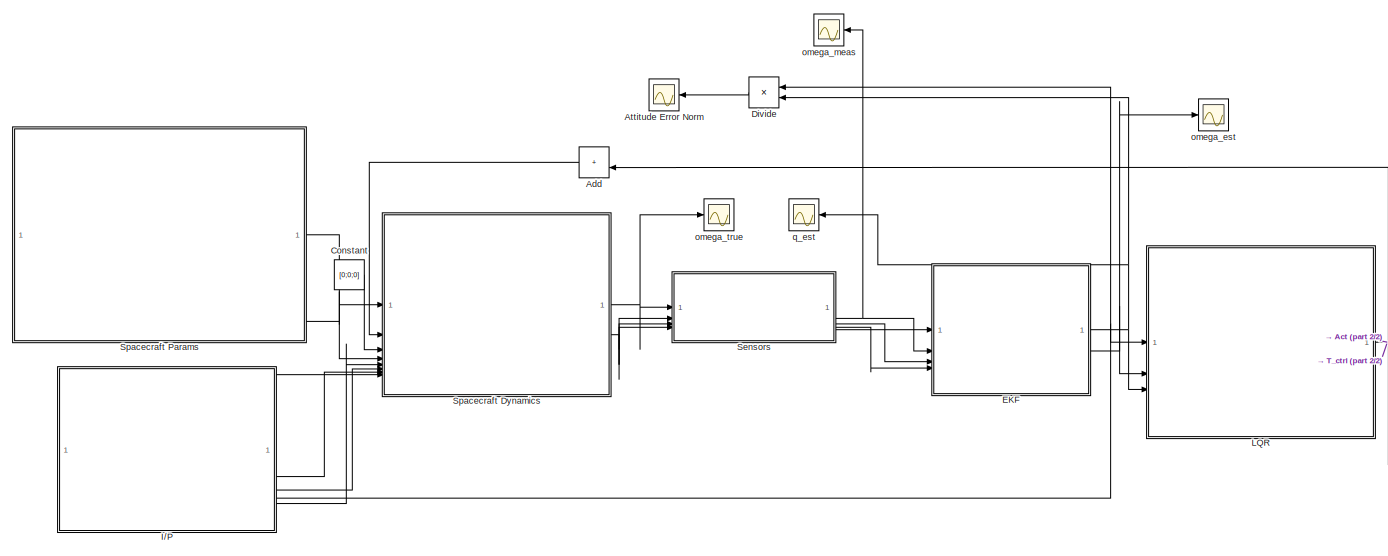
[diagram: root canvas - part 1/2, most of the canvas]
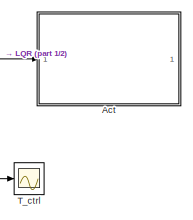
[diagram: root canvas - part 2/2, bottom right region]
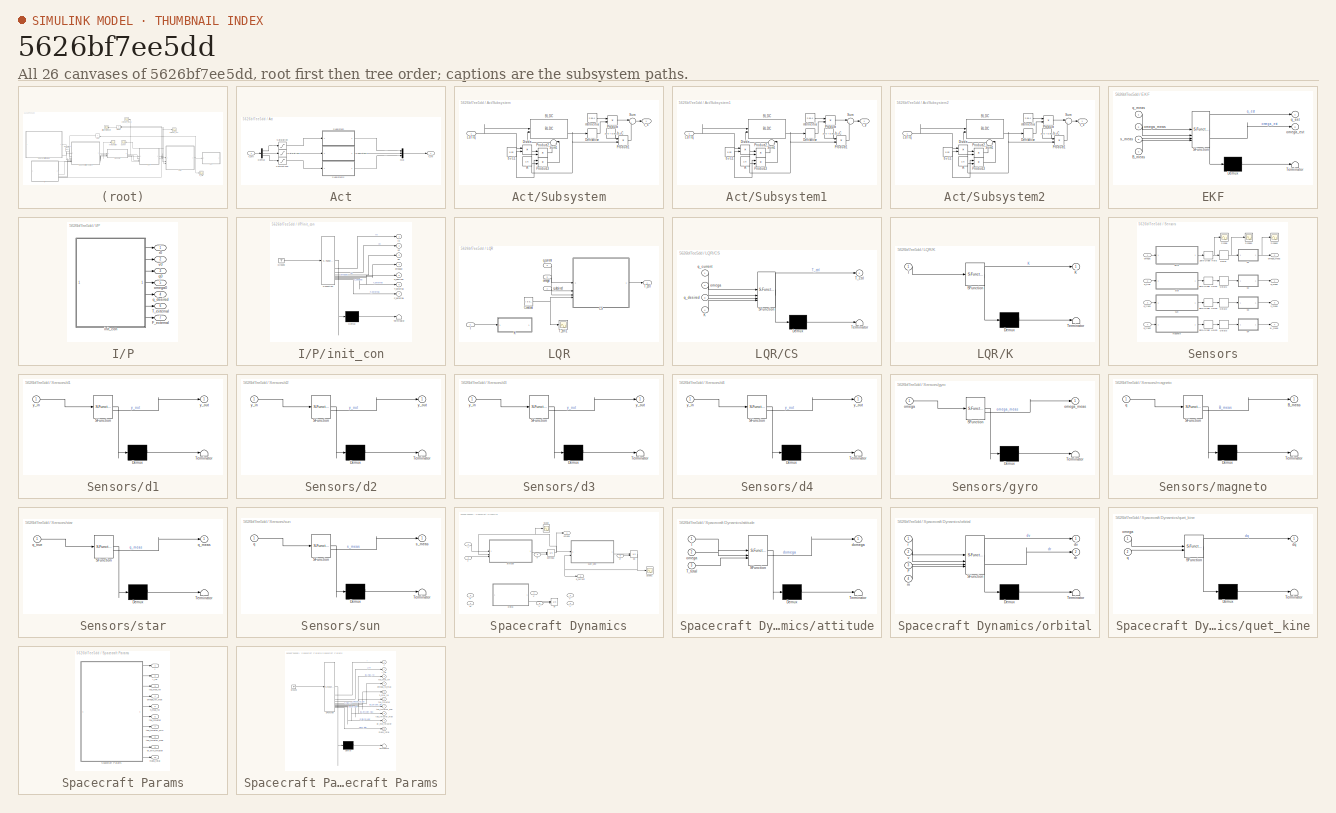
[diagram: thumbnail index - all 26 canvases of the model, root first then tree order]
MODEL slx_5626bf7ee5dd
KIND model
CONFIG AbsTol = 1e-5
CONFIG EnableMultiTasking = off
CONFIG FixedStep = auto
CONFIG MaxStep = 0.01
CONFIG MinStep = auto
CONFIG RelTol = 1e-4
CONFIG SampleTimeConstraint = Unconstrained
CONFIG SolverName = VariableStepAuto
CONFIG StartTime = 0.0
CONFIG StopTime = 100
BLOCK [SubSystem] Act
BLOCK [Demux] Act/Demux
  Outputs = 3
BLOCK [Mux] Act/Mux
  DisplayOption = bar
  Inputs = 3
BLOCK [Saturate] Act/Saturation
  LowerLimit = -0.2
  UpperLimit = 0.2
BLOCK [Saturate] Act/Saturation1
  LowerLimit = -0.2
  UpperLimit = 0.2
BLOCK [Saturate] Act/Saturation2
  LowerLimit = -0.2
  UpperLimit = 0.2
BLOCK [SubSystem] Act/Subsystem
BLOCK [Reference] Act/Subsystem/BLDC  REF=autolibbldc/BLDC
  LibrarySourceBlock = mcblib/Electrical Systems/Motors/BLDC
  SourceBlock = autolibbldc/BLDC
  SourceType = BLDC
BLOCK [Derivative] Act/Subsystem/Derivative
BLOCK [Product] Act/Subsystem/Divide
  Inputs = */
BLOCK [Inport] Act/Subsystem/LdTrq
BLOCK [Product] Act/Subsystem/Product
BLOCK [Product] Act/Subsystem/Product1
BLOCK [Product] Act/Subsystem/Product2
BLOCK [Product] Act/Subsystem/Product3
BLOCK [Constant] Act/Subsystem/R
  Value = 2.5
BLOCK [Sum] Act/Subsystem/Sum
  Inputs = |++
BLOCK [Sum] Act/Subsystem/Sum1
  Inputs = |++
BLOCK [Constant] Act/Subsystem/b+C
  Value = 1e-5 + 0.001
BLOCK [Constant] Act/Subsystem/b+C1
  Value = 0.05
BLOCK [Constant] Act/Subsystem/mtrInertia
  Value = 2.5e-4
BLOCK [Outport] Act/Subsystem/t_x
BLOCK [SubSystem] Act/Subsystem1
BLOCK [Reference] Act/Subsystem1/BLDC  REF=autolibbldc/BLDC
  LibrarySourceBlock = mcblib/Electrical Systems/Motors/BLDC
  SourceBlock = autolibbldc/BLDC
  SourceType = BLDC
BLOCK [Derivative] Act/Subsystem1/Derivative
BLOCK [Product] Act/Subsystem1/Divide
  Inputs = */
BLOCK [Inport] Act/Subsystem1/LdTrq
BLOCK [Product] Act/Subsystem1/Product
BLOCK [Product] Act/Subsystem1/Product1
BLOCK [Product] Act/Subsystem1/Product2
BLOCK [Product] Act/Subsystem1/Product3
BLOCK [Constant] Act/Subsystem1/R
  Value = 2.5
BLOCK [Sum] Act/Subsystem1/Sum
  Inputs = |++
BLOCK [Sum] Act/Subsystem1/Sum1
  Inputs = |++
BLOCK [Constant] Act/Subsystem1/b+C
  Value = 1e-5 + 0.001
BLOCK [Constant] Act/Subsystem1/b+C1
  Value = 0.05
BLOCK [Constant] Act/Subsystem1/mtrInertia
  Value = 2.5e-4
BLOCK [Outport] Act/Subsystem1/t_y
BLOCK [SubSystem] Act/Subsystem2
BLOCK [Reference] Act/Subsystem2/BLDC  REF=autolibbldc/BLDC
  LibrarySourceBlock = mcblib/Electrical Systems/Motors/BLDC
  SourceBlock = autolibbldc/BLDC
  SourceType = BLDC
BLOCK [Derivative] Act/Subsystem2/Derivative
BLOCK [Product] Act/Subsystem2/Divide
  Inputs = */
BLOCK [Inport] Act/Subsystem2/LdTrq
BLOCK [Product] Act/Subsystem2/Product
BLOCK [Product] Act/Subsystem2/Product1
BLOCK [Product] Act/Subsystem2/Product2
BLOCK [Product] Act/Subsystem2/Product3
BLOCK [Constant] Act/Subsystem2/R
  Value = 2.5
BLOCK [Sum] Act/Subsystem2/Sum
  Inputs = |++
BLOCK [Sum] Act/Subsystem2/Sum1
  Inputs = |++
BLOCK [Constant] Act/Subsystem2/b+C
  Value = 1e-5 + 0.001
BLOCK [Constant] Act/Subsystem2/b+C1
  Value = 0.05
BLOCK [Constant] Act/Subsystem2/mtrInertia
  Value = 2.5e-4
BLOCK [Outport] Act/Subsystem2/t_z
BLOCK [Inport] Act/T_ctrl
BLOCK [Outport] Act/T_rw
BLOCK [Sum] Add
  IconShape = rectangular
BLOCK [Scope] Attitude Error Norm
  Floating = off
  NumInputPorts = 1
  ScopeSpecificationString = Simulink.scopes.TimeScopeBlockCfg('CurrentConfiguration', extmgr.ConfigurationSet(extmgr.Configuration('Core','General UI',true),extmgr.Configuration('Core','Source UI',true),extmgr.Configuration('Sources','WiredSimulink',true,'DataLoggingVariableName','ScopeData11'),extmgr.Configuration('Visuals','Time Domain',true,'SerializedDisplays',{struct('MinYLimReal','-103.05468','MaxYLimReal','30.20992','...<+1538ch>
BLOCK [Constant] Constant
  Value = [0;0;0]
BLOCK [Product] Divide
  Inputs = */
BLOCK [SubSystem] EKF
  ErrorFcn = Stateflow.Translate.translate
  PermitHierarchicalResolution = ExplicitOnly
  SFBlockType = MATLAB Function
  TreatAsAtomicUnit = on
BLOCK [Demux] EKF/ Demux 
  Outputs = 1
BLOCK [S-Function] EKF/ SFunction 
  EnableBusSupport = on
  FunctionName = sf_sfun
  PortCounts = [4 3]
  SFcnIsStateOwnerBlock = off
  SFunctionDeploymentMode = off
  Tag = Stateflow S-Function 13
BLOCK [Terminator] EKF/ Terminator 
BLOCK [Inport] EKF/B_meas
  Port = 4
BLOCK [Outport] EKF/omega_est
  Port = 2
BLOCK [Inport] EKF/omega_meas
  Port = 2
BLOCK [Outport] EKF/q_est
BLOCK [Inport] EKF/q_meas
BLOCK [Inport] EKF/s_meas
  Port = 3
BLOCK [SubSystem] I//P
BLOCK [Outport] I//P/F_external
  Port = 7
BLOCK [Outport] I//P/T_external
  Port = 6
BLOCK [SubSystem] I//P/init_con
  ErrorFcn = Stateflow.Translate.translate
  PermitHierarchicalResolution = ExplicitOnly
  SFBlockType = MATLAB Function
  TreatAsAtomicUnit = on
BLOCK [Demux] I//P/init_con/ Demux 
  Outputs = 1
BLOCK [Ground] I//P/init_con/ Ground 
BLOCK [S-Function] I//P/init_con/ SFunction 
  EnableBusSupport = on
  FunctionName = sf_sfun
  PortCounts = [1 8]
  SFcnIsStateOwnerBlock = off
  SFunctionDeploymentMode = off
  Tag = Stateflow S-Function 5
BLOCK [Terminator] I//P/init_con/ Terminator 
BLOCK [Outport] I//P/init_con/F_external
  Port = 7
BLOCK [Outport] I//P/init_con/T_external
  Port = 6
BLOCK [Outport] I//P/init_con/omega0
  Port = 4
BLOCK [Outport] I//P/init_con/q0
  Port = 3
BLOCK [Outport] I//P/init_con/q_desired
  Port = 5
BLOCK [Outport] I//P/init_con/r0
BLOCK [Outport] I//P/init_con/v0
  Port = 2
BLOCK [Outport] I//P/omega0
  Port = 5
BLOCK [Outport] I//P/q0
  Port = 3
BLOCK [Outport] I//P/q_desired
  Port = 4
BLOCK [Outport] I//P/r0
BLOCK [Outport] I//P/v0
  Port = 2
BLOCK [SubSystem] LQR
BLOCK [SubSystem] LQR/CS
  ErrorFcn = Stateflow.Translate.translate
  PermitHierarchicalResolution = ExplicitOnly
  SFBlockType = MATLAB Function
  TreatAsAtomicUnit = on
BLOCK [Demux] LQR/CS/ Demux 
  Outputs = 1
BLOCK [S-Function] LQR/CS/ SFunction 
  EnableBusSupport = on
  FunctionName = sf_sfun
  PortCounts = [4 2]
  SFcnIsStateOwnerBlock = off
  SFunctionDeploymentMode = off
  Tag = Stateflow S-Function 6
BLOCK [Terminator] LQR/CS/ Terminator 
BLOCK [Inport] LQR/CS/K
  Port = 4
BLOCK [Outport] LQR/CS/T_ctrl
BLOCK [Inport] LQR/CS/omega
  Port = 2
BLOCK [Inport] LQR/CS/q_current
BLOCK [Inport] LQR/CS/q_desired
  Port = 3
BLOCK [Constant] LQR/Constant
  Value = [\n    5   0   0   1.0  0    0;\n    0   5   0   0    1.0  0;\n    0   0   5   0    0    1.0\n]
BLOCK [Inport] LQR/I
  Port = 4
BLOCK [SubSystem] LQR/K
  ErrorFcn = Stateflow.Translate.translate
  PermitHierarchicalResolution = ExplicitOnly
  SFBlockType = MATLAB Function
  TreatAsAtomicUnit = on
BLOCK [Demux] LQR/K/ Demux 
  Outputs = 1
BLOCK [S-Function] LQR/K/ SFunction 
  EnableBusSupport = on
  FunctionName = sf_sfun
  PortCounts = [1 2]
  SFcnIsStateOwnerBlock = off
  SFunctionDeploymentMode = off
  Tag = Stateflow S-Function 17
BLOCK [Terminator] LQR/K/ Terminator 
BLOCK [Inport] LQR/K/I
BLOCK [Outport] LQR/K/K
BLOCK [Outport] LQR/T_ctrl
BLOCK [Scope] LQR/T_ctrl1
  Floating = off
  NumInputPorts = 1
  ScopeSpecificationString = Simulink.scopes.TimeScopeBlockCfg('CurrentConfiguration', extmgr.ConfigurationSet(extmgr.Configuration('Core','General UI',true),extmgr.Configuration('Core','Source UI',true),extmgr.Configuration('Sources','WiredSimulink',true,'DataLoggingVariableName','ScopeData16'),extmgr.Configuration('Visuals','Time Domain',true,'SerializedDisplays',{struct('MinYLimReal','-122.43954','MaxYLimReal','121.91641',...<+2378ch>
BLOCK [Inport] LQR/omega
  Port = 2
BLOCK [Inport] LQR/q_current
  Port = 3
BLOCK [Inport] LQR/q_desired
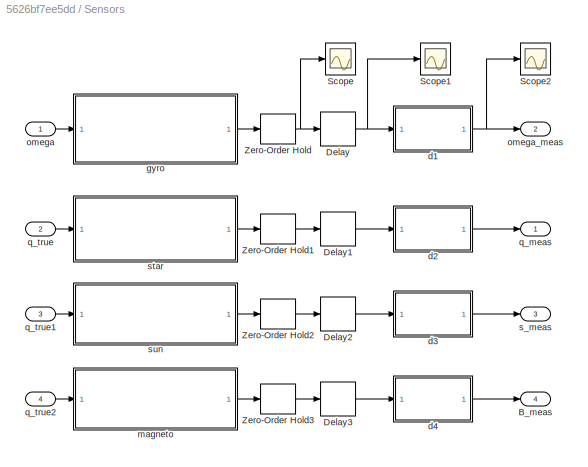
BLOCK [SubSystem] Sensors
BLOCK [Outport] Sensors/B_meas
  Port = 4
BLOCK [Delay] Sensors/Delay
  DelayLength = 1
  InitialCondition = 0
  InputPortMap = u0
  SampleTime = 0.05
BLOCK [Delay] Sensors/Delay1
  DelayLength = 1
  InitialCondition = 0
  InputPortMap = u0
  SampleTime = 0.05
BLOCK [Delay] Sensors/Delay2
  DelayLength = 1
  InitialCondition = 0
  InputPortMap = u0
  SampleTime = 0.05
BLOCK [Delay] Sensors/Delay3
  DelayLength = 1
  InitialCondition = 0
  InputPortMap = u0
  SampleTime = 0.05
BLOCK [Scope] Sensors/Scope
  Floating = off
  NumInputPorts = 1
  ScopeSpecificationString = Simulink.scopes.TimeScopeBlockCfg('CurrentConfiguration', extmgr.ConfigurationSet(extmgr.Configuration('Core','General UI',true),extmgr.Configuration('Core','Source UI',true),extmgr.Configuration('Sources','WiredSimulink',true,'DataLoggingVariableName','ScopeData8'),extmgr.Configuration('Visuals','Time Domain',true,'SerializedDisplays',{struct('MinYLimReal','-239897.09702','MaxYLimReal','26655.305...<+1494ch>
BLOCK [Scope] Sensors/Scope1
  Floating = off
  NumInputPorts = 1
  ScopeSpecificationString = Simulink.scopes.TimeScopeBlockCfg('CurrentConfiguration', extmgr.ConfigurationSet(extmgr.Configuration('Core','General UI',true),extmgr.Configuration('Core','Source UI',true),extmgr.Configuration('Sources','WiredSimulink',true,'DataLoggingVariableName','ScopeData9'),extmgr.Configuration('Visuals','Time Domain',true,'SerializedDisplays',{struct('MinYLimReal','-239897.09702','MaxYLimReal','26655.305...<+1499ch>
BLOCK [Scope] Sensors/Scope2
  Floating = off
  NumInputPorts = 1
  ScopeSpecificationString = Simulink.scopes.TimeScopeBlockCfg('CurrentConfiguration', extmgr.ConfigurationSet(extmgr.Configuration('Core','General UI',true),extmgr.Configuration('Core','Source UI',true),extmgr.Configuration('Sources','WiredSimulink',true,'DataLoggingVariableName','ScopeData10'),extmgr.Configuration('Visuals','Time Domain',true,'SerializedDisplays',{struct('MinYLimReal','-239897.09702','MaxYLimReal','26655.30...<+1456ch>
BLOCK [ZeroOrderHold] Sensors/Zero-Order Hold
  SampleTime = 0.1
BLOCK [ZeroOrderHold] Sensors/Zero-Order Hold1
  SampleTime = -1
BLOCK [ZeroOrderHold] Sensors/Zero-Order Hold2
  SampleTime = -1
BLOCK [ZeroOrderHold] Sensors/Zero-Order Hold3
  SampleTime = -1
BLOCK [SubSystem] Sensors/d1
  ErrorFcn = Stateflow.Translate.translate
  PermitHierarchicalResolution = ExplicitOnly
  SFBlockType = MATLAB Function
  TreatAsAtomicUnit = on
BLOCK [Demux] Sensors/d1/ Demux 
  Outputs = 1
BLOCK [S-Function] Sensors/d1/ SFunction 
  EnableBusSupport = on
  FunctionName = sf_sfun
  PortCounts = [1 2]
  SFcnIsStateOwnerBlock = off
  SFunctionDeploymentMode = off
  Tag = Stateflow S-Function 9
BLOCK [Terminator] Sensors/d1/ Terminator 
BLOCK [Inport] Sensors/d1/y_in
BLOCK [Outport] Sensors/d1/y_out
BLOCK [SubSystem] Sensors/d2
  ErrorFcn = Stateflow.Translate.translate
  PermitHierarchicalResolution = ExplicitOnly
  SFBlockType = MATLAB Function
  TreatAsAtomicUnit = on
BLOCK [Demux] Sensors/d2/ Demux 
  Outputs = 1
BLOCK [S-Function] Sensors/d2/ SFunction 
  EnableBusSupport = on
  FunctionName = sf_sfun
  PortCounts = [1 2]
  SFcnIsStateOwnerBlock = off
  SFunctionDeploymentMode = off
  Tag = Stateflow S-Function 10
BLOCK [Terminator] Sensors/d2/ Terminator 
BLOCK [Inport] Sensors/d2/y_in
BLOCK [Outport] Sensors/d2/y_out
BLOCK [SubSystem] Sensors/d3
  ErrorFcn = Stateflow.Translate.translate
  PermitHierarchicalResolution = ExplicitOnly
  SFBlockType = MATLAB Function
  TreatAsAtomicUnit = on
BLOCK [Demux] Sensors/d3/ Demux 
  Outputs = 1
BLOCK [S-Function] Sensors/d3/ SFunction 
  EnableBusSupport = on
  FunctionName = sf_sfun
  PortCounts = [1 2]
  SFcnIsStateOwnerBlock = off
  SFunctionDeploymentMode = off
  Tag = Stateflow S-Function 14
BLOCK [Terminator] Sensors/d3/ Terminator 
BLOCK [Inport] Sensors/d3/y_in
BLOCK [Outport] Sensors/d3/y_out
BLOCK [SubSystem] Sensors/d4
  ErrorFcn = Stateflow.Translate.translate
  PermitHierarchicalResolution = ExplicitOnly
  SFBlockType = MATLAB Function
  TreatAsAtomicUnit = on
BLOCK [Demux] Sensors/d4/ Demux 
  Outputs = 1
BLOCK [S-Function] Sensors/d4/ SFunction 
  EnableBusSupport = on
  FunctionName = sf_sfun
  PortCounts = [1 2]
  SFcnIsStateOwnerBlock = off
  SFunctionDeploymentMode = off
  Tag = Stateflow S-Function 15
BLOCK [Terminator] Sensors/d4/ Terminator 
BLOCK [Inport] Sensors/d4/y_in
BLOCK [Outport] Sensors/d4/y_out
BLOCK [SubSystem] Sensors/gyro
  ErrorFcn = Stateflow.Translate.translate
  PermitHierarchicalResolution = ExplicitOnly
  SFBlockType = MATLAB Function
  TreatAsAtomicUnit = on
BLOCK [Demux] Sensors/gyro/ Demux 
  Outputs = 1
BLOCK [S-Function] Sensors/gyro/ SFunction 
  EnableBusSupport = on
  FunctionName = sf_sfun
  PortCounts = [1 2]
  SFcnIsStateOwnerBlock = off
  SFunctionDeploymentMode = off
  Tag = Stateflow S-Function 7
BLOCK [Terminator] Sensors/gyro/ Terminator 
BLOCK [Inport] Sensors/gyro/omega
BLOCK [Outport] Sensors/gyro/omega_meas
BLOCK [SubSystem] Sensors/magneto
  ErrorFcn = Stateflow.Translate.translate
  PermitHierarchicalResolution = ExplicitOnly
  SFBlockType = MATLAB Function
  TreatAsAtomicUnit = on
BLOCK [Demux] Sensors/magneto/ Demux 
  Outputs = 1
BLOCK [S-Function] Sensors/magneto/ SFunction 
  EnableBusSupport = on
  FunctionName = sf_sfun
  PortCounts = [1 2]
  SFcnIsStateOwnerBlock = off
  SFunctionDeploymentMode = off
  Tag = Stateflow S-Function 12
BLOCK [Terminator] Sensors/magneto/ Terminator 
BLOCK [Outport] Sensors/magneto/B_meas
BLOCK [Inport] Sensors/magneto/q
BLOCK [Inport] Sensors/omega
BLOCK [Outport] Sensors/omega_meas
  Port = 2
BLOCK [Outport] Sensors/q_meas
BLOCK [Inport] Sensors/q_true
  Port = 2
BLOCK [Inport] Sensors/q_true1
  Port = 3
BLOCK [Inport] Sensors/q_true2
  Port = 4
BLOCK [Outport] Sensors/s_meas
  Port = 3
BLOCK [SubSystem] Sensors/star
  ErrorFcn = Stateflow.Translate.translate
  PermitHierarchicalResolution = ExplicitOnly
  SFBlockType = MATLAB Function
  TreatAsAtomicUnit = on
BLOCK [Demux] Sensors/star/ Demux 
  Outputs = 1
BLOCK [S-Function] Sensors/star/ SFunction 
  EnableBusSupport = on
  FunctionName = sf_sfun
  PortCounts = [1 2]
  SFcnIsStateOwnerBlock = off
  SFunctionDeploymentMode = off
  Tag = Stateflow S-Function 8
BLOCK [Terminator] Sensors/star/ Terminator 
BLOCK [Outport] Sensors/star/q_meas
BLOCK [Inport] Sensors/star/q_true
BLOCK [SubSystem] Sensors/sun
  ErrorFcn = Stateflow.Translate.translate
  PermitHierarchicalResolution = ExplicitOnly
  SFBlockType = MATLAB Function
  TreatAsAtomicUnit = on
BLOCK [Demux] Sensors/sun/ Demux 
  Outputs = 1
BLOCK [S-Function] Sensors/sun/ SFunction 
  EnableBusSupport = on
  FunctionName = sf_sfun
  PortCounts = [1 2]
  SFcnIsStateOwnerBlock = off
  SFunctionDeploymentMode = off
  Tag = Stateflow S-Function 11
BLOCK [Terminator] Sensors/sun/ Terminator 
BLOCK [Inport] Sensors/sun/q
BLOCK [Outport] Sensors/sun/s_meas
BLOCK [SubSystem] Spacecraft Dynamics
BLOCK [Inport] Spacecraft Dynamics/F
  Port = 3
BLOCK [Inport] Spacecraft Dynamics/I
BLOCK [Scope] Spacecraft Dynamics/Scope
  Floating = off
  NumInputPorts = 1
  ScopeSpecificationString = Simulink.scopes.TimeScopeBlockCfg('CurrentConfiguration', extmgr.ConfigurationSet(extmgr.Configuration('Core','General UI',true),extmgr.Configuration('Core','Source UI',true),extmgr.Configuration('Sources','WiredSimulink',true,'DataLoggingVariableName','ScopeData3'),extmgr.Configuration('Visuals','Time Domain',true,'SerializedDisplays',{struct('MinYLimReal','-1.49225','MaxYLimReal','1.78985','YLab...<+1475ch>
BLOCK [Scope] Spacecraft Dynamics/Scope1
  Floating = off
  NumInputPorts = 1
  ScopeSpecificationString = Simulink.scopes.TimeScopeBlockCfg('CurrentConfiguration', extmgr.ConfigurationSet(extmgr.Configuration('Core','General UI',true),extmgr.Configuration('Core','Source UI',true),extmgr.Configuration('Sources','WiredSimulink',true,'DataLoggingVariableName','ScopeData4'),extmgr.Configuration('Visuals','Time Domain',true,'SerializedDisplays',{struct('MinYLimReal','-0.91019','MaxYLimReal','1.2112','YLabe...<+1466ch>
BLOCK [Inport] Spacecraft Dynamics/T
  Port = 2
BLOCK [SubSystem] Spacecraft Dynamics/attitude
  ErrorFcn = Stateflow.Translate.translate
  PermitHierarchicalResolution = ExplicitOnly
  SFBlockType = MATLAB Function
  TreatAsAtomicUnit = on
BLOCK [Demux] Spacecraft Dynamics/attitude/ Demux 
  Outputs = 1
BLOCK [S-Function] Spacecraft Dynamics/attitude/ SFunction 
  EnableBusSupport = on
  FunctionName = sf_sfun
  PortCounts = [3 2]
  SFcnIsStateOwnerBlock = off
  SFunctionDeploymentMode = off
  Tag = Stateflow S-Function 1
BLOCK [Terminator] Spacecraft Dynamics/attitude/ Terminator 
BLOCK [Inport] Spacecraft Dynamics/attitude/I
BLOCK [Inport] Spacecraft Dynamics/attitude/T_total
  Port = 3
BLOCK [Outport] Spacecraft Dynamics/attitude/domega
BLOCK [Inport] Spacecraft Dynamics/attitude/omega
  Port = 2
BLOCK [Integrator] Spacecraft Dynamics/domega
  InitialConditionSource = external
BLOCK [Integrator] Spacecraft Dynamics/dq
  InitialConditionSource = external
BLOCK [Integrator] Spacecraft Dynamics/dr
  InitialConditionSource = external
BLOCK [Inport] Spacecraft Dynamics/m
  Port = 4
BLOCK [Inport] Spacecraft Dynamics/o'
  Port = 5
BLOCK [Outport] Spacecraft Dynamics/omega
BLOCK [SubSystem] Spacecraft Dynamics/orbital
  ErrorFcn = Stateflow.Translate.translate
  PermitHierarchicalResolution = ExplicitOnly
  SFBlockType = MATLAB Function
  TreatAsAtomicUnit = on
BLOCK [Demux] Spacecraft Dynamics/orbital/ Demux 
  Outputs = 1
BLOCK [S-Function] Spacecraft Dynamics/orbital/ SFunction 
  EnableBusSupport = on
  FunctionName = sf_sfun
  PortCounts = [4 3]
  SFcnIsStateOwnerBlock = off
  SFunctionDeploymentMode = off
  Tag = Stateflow S-Function 4
BLOCK [Terminator] Spacecraft Dynamics/orbital/ Terminator 
BLOCK [Inport] Spacecraft Dynamics/orbital/F
  Port = 3
BLOCK [Outport] Spacecraft Dynamics/orbital/dr
  Port = 2
BLOCK [Outport] Spacecraft Dynamics/orbital/dv
BLOCK [Inport] Spacecraft Dynamics/orbital/m
  Port = 4
BLOCK [Inport] Spacecraft Dynamics/orbital/r
BLOCK [Inport] Spacecraft Dynamics/orbital/v
  Port = 2
BLOCK [Inport] Spacecraft Dynamics/q'
  Port = 6
BLOCK [Outport] Spacecraft Dynamics/q_current
  Port = 2
BLOCK [SubSystem] Spacecraft Dynamics/quet_kine
  ErrorFcn = Stateflow.Translate.translate
  PermitHierarchicalResolution = ExplicitOnly
  SFBlockType = MATLAB Function
  TreatAsAtomicUnit = on
BLOCK [Demux] Spacecraft Dynamics/quet_kine/ Demux 
  Outputs = 1
BLOCK [S-Function] Spacecraft Dynamics/quet_kine/ SFunction 
  EnableBusSupport = on
  FunctionName = sf_sfun
  PortCounts = [2 2]
  SFcnIsStateOwnerBlock = off
  SFunctionDeploymentMode = off
  Tag = Stateflow S-Function 3
BLOCK [Terminator] Spacecraft Dynamics/quet_kine/ Terminator 
BLOCK [Outport] Spacecraft Dynamics/quet_kine/dq
BLOCK [Inport] Spacecraft Dynamics/quet_kine/omega
BLOCK [Inport] Spacecraft Dynamics/quet_kine/q
  Port = 2
BLOCK [Outport] Spacecraft Dynamics/r
  Port = 3
BLOCK [Inport] Spacecraft Dynamics/r'
  Port = 8
BLOCK [Outport] Spacecraft Dynamics/v
  Port = 4
BLOCK [Inport] Spacecraft Dynamics/v'
  Port = 7
BLOCK [SubSystem] Spacecraft Params
BLOCK [Outport] Spacecraft Params/I
BLOCK [Outport] Spacecraft Params/I_rw
  Port = 2
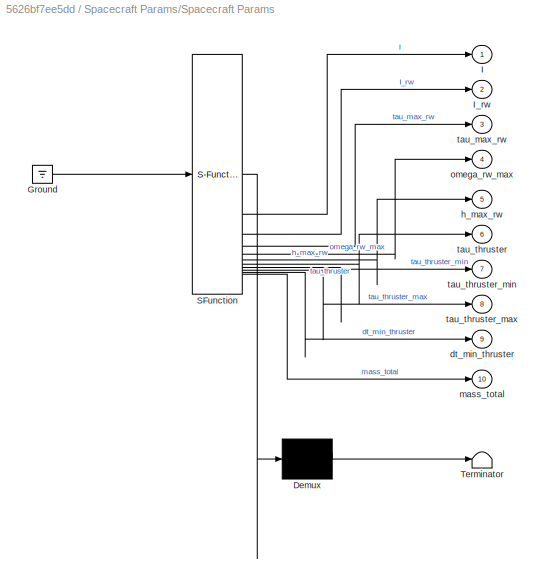
BLOCK [SubSystem] Spacecraft Params/Spacecraft Params
  ErrorFcn = Stateflow.Translate.translate
  PermitHierarchicalResolution = ExplicitOnly
  SFBlockType = MATLAB Function
  TreatAsAtomicUnit = on
BLOCK [Demux] Spacecraft Params/Spacecraft Params/ Demux 
  Outputs = 1
BLOCK [Ground] Spacecraft Params/Spacecraft Params/ Ground 
BLOCK [S-Function] Spacecraft Params/Spacecraft Params/ SFunction 
  EnableBusSupport = on
  FunctionName = sf_sfun
  PortCounts = [1 11]
  SFcnIsStateOwnerBlock = off
  SFunctionDeploymentMode = off
  Tag = Stateflow S-Function 2
BLOCK [Terminator] Spacecraft Params/Spacecraft Params/ Terminator 
BLOCK [Outport] Spacecraft Params/Spacecraft Params/I
BLOCK [Outport] Spacecraft Params/Spacecraft Params/I_rw
  Port = 2
BLOCK [Outport] Spacecraft Params/Spacecraft Params/dt_min_thruster
  Port = 9
BLOCK [Outport] Spacecraft Params/Spacecraft Params/h_max_rw
  Port = 5
BLOCK [Outport] Spacecraft Params/Spacecraft Params/mass_total
  Port = 10
BLOCK [Outport] Spacecraft Params/Spacecraft Params/omega_rw_max
  Port = 4
BLOCK [Outport] Spacecraft Params/Spacecraft Params/tau_max_rw
  Port = 3
BLOCK [Outport] Spacecraft Params/Spacecraft Params/tau_thruster
  Port = 6
BLOCK [Outport] Spacecraft Params/Spacecraft Params/tau_thruster_max
  Port = 8
BLOCK [Outport] Spacecraft Params/Spacecraft Params/tau_thruster_min
  Port = 7
BLOCK [Outport] Spacecraft Params/dt_min_thruster
  Port = 9
BLOCK [Outport] Spacecraft Params/h_max_rw
  Port = 5
BLOCK [Outport] Spacecraft Params/mass_total
  Port = 10
BLOCK [Outport] Spacecraft Params/omega_rw_max
  Port = 4
BLOCK [Outport] Spacecraft Params/tau_max_rw
  Port = 3
BLOCK [Outport] Spacecraft Params/tau_thruster
  Port = 6
BLOCK [Outport] Spacecraft Params/tau_thruster_max
  Port = 8
BLOCK [Outport] Spacecraft Params/tau_thruster_min
  Port = 7
BLOCK [Scope] T_ctrl
  Floating = off
  NumInputPorts = 1
  ScopeSpecificationString = Simulink.scopes.TimeScopeBlockCfg('CurrentConfiguration', extmgr.ConfigurationSet(extmgr.Configuration('Core','General UI',true),extmgr.Configuration('Core','Source UI',true),extmgr.Configuration('Sources','WiredSimulink',true),extmgr.Configuration('Visuals','Time Domain',true,'SerializedDisplays',{struct('MinYLimReal','-29.17042','MaxYLimReal','22.42501','YLabelReal','','MinYLimMag','0.00000','Ma...<+1445ch>
BLOCK [Scope] omega_est
  Floating = off
  NumInputPorts = 1
  ScopeSpecificationString = Simulink.scopes.TimeScopeBlockCfg('CurrentConfiguration', extmgr.ConfigurationSet(extmgr.Configuration('Core','General UI',true),extmgr.Configuration('Core','Source UI',true),extmgr.Configuration('Sources','WiredSimulink',true,'DataLoggingVariableName','ScopeData6'),extmgr.Configuration('Visuals','Time Domain',true,'SerializedDisplays',{struct('MinYLimReal','-0.68587','MaxYLimReal','0.74569','YLab...<+1482ch>
BLOCK [Scope] omega_meas
  Floating = off
  NumInputPorts = 1
  ScopeSpecificationString = Simulink.scopes.TimeScopeBlockCfg('CurrentConfiguration', extmgr.ConfigurationSet(extmgr.Configuration('Core','General UI',true),extmgr.Configuration('Core','Source UI',true),extmgr.Configuration('Sources','WiredSimulink',true,'DataLoggingVariableName','ScopeData1'),extmgr.Configuration('Visuals','Time Domain',true,'SerializedDisplays',{struct('MinYLimReal','-1.47686','MaxYLimReal','2.21874','YLab...<+1500ch>
BLOCK [Scope] omega_true
  Floating = off
  NumInputPorts = 1
  ScopeSpecificationString = Simulink.scopes.TimeScopeBlockCfg('CurrentConfiguration', extmgr.ConfigurationSet(extmgr.Configuration('Core','General UI',true),extmgr.Configuration('Core','Source UI',true),extmgr.Configuration('Sources','WiredSimulink',true,'DataLoggingVariableName','ScopeData7'),extmgr.Configuration('Visuals','Time Domain',true,'SerializedDisplays',{struct('MinYLimReal','-35770.14022','MaxYLimReal','3974.68096...<+1545ch>
BLOCK [Scope] q_est
  Floating = off
  NumInputPorts = 1
  ScopeSpecificationString = Simulink.scopes.TimeScopeBlockCfg('CurrentConfiguration', extmgr.ConfigurationSet(extmgr.Configuration('Core','General UI',true),extmgr.Configuration('Core','Source UI',true),extmgr.Configuration('Sources','WiredSimulink',true,'DataLoggingVariableName','ScopeData5'),extmgr.Configuration('Visuals','Time Domain',true,'SerializedDisplays',{struct('MinYLimReal','-1.1937','MaxYLimReal','1.24374','YLabe...<+1500ch>
LINE Act/Demux:1 -> Act/Saturation:1
LINE Act/Demux:2 -> Act/Saturation1:1
LINE Act/Demux:3 -> Act/Saturation2:1
LINE Act/Mux:1 -> Act/T_rw:1
LINE Act/Saturation1:1 -> Act/Subsystem1:1
LINE Act/Saturation2:1 -> Act/Subsystem2:1
LINE Act/Saturation:1 -> Act/Subsystem:1
NET Act/Subsystem/BLDC:3 -> Act/Subsystem/Derivative:1, Act/Subsystem/Product1:2, Act/Subsystem/Product3:2
LINE Act/Subsystem/Derivative:1 -> Act/Subsystem/Product:2
LINE Act/Subsystem/Divide:1 -> Act/Subsystem/Product2:1
NET Act/Subsystem/LdTrq:1 -> Act/Subsystem/BLDC:1, Act/Subsystem/Divide:1
LINE Act/Subsystem/Product1:1 -> Act/Subsystem/Sum:2
LINE Act/Subsystem/Product2:1 -> Act/Subsystem/Sum1:2
LINE Act/Subsystem/Product3:1 -> Act/Subsystem/Sum1:1
LINE Act/Subsystem/Product:1 -> Act/Subsystem/Sum:1
LINE Act/Subsystem/R:1 -> Act/Subsystem/Product2:2
LINE Act/Subsystem/Sum1:1 -> Act/Subsystem/BLDC:2
LINE Act/Subsystem/Sum:1 -> Act/Subsystem/t_x:1
NET Act/Subsystem/b+C1:1 -> Act/Subsystem/Divide:2, Act/Subsystem/Product3:1
LINE Act/Subsystem/b+C:1 -> Act/Subsystem/Product1:1
LINE Act/Subsystem/mtrInertia:1 -> Act/Subsystem/Product:1
NET Act/Subsystem1/BLDC:3 -> Act/Subsystem1/Derivative:1, Act/Subsystem1/Product1:2, Act/Subsystem1/Product3:2
LINE Act/Subsystem1/Derivative:1 -> Act/Subsystem1/Product:2
LINE Act/Subsystem1/Divide:1 -> Act/Subsystem1/Product2:1
NET Act/Subsystem1/LdTrq:1 -> Act/Subsystem1/BLDC:1, Act/Subsystem1/Divide:1
LINE Act/Subsystem1/Product1:1 -> Act/Subsystem1/Sum:2
LINE Act/Subsystem1/Product2:1 -> Act/Subsystem1/Sum1:2
LINE Act/Subsystem1/Product3:1 -> Act/Subsystem1/Sum1:1
LINE Act/Subsystem1/Product:1 -> Act/Subsystem1/Sum:1
LINE Act/Subsystem1/R:1 -> Act/Subsystem1/Product2:2
LINE Act/Subsystem1/Sum1:1 -> Act/Subsystem1/BLDC:2
LINE Act/Subsystem1/Sum:1 -> Act/Subsystem1/t_y:1
NET Act/Subsystem1/b+C1:1 -> Act/Subsystem1/Divide:2, Act/Subsystem1/Product3:1
LINE Act/Subsystem1/b+C:1 -> Act/Subsystem1/Product1:1
LINE Act/Subsystem1/mtrInertia:1 -> Act/Subsystem1/Product:1
LINE Act/Subsystem1:1 -> Act/Mux:2
NET Act/Subsystem2/BLDC:3 -> Act/Subsystem2/Derivative:1, Act/Subsystem2/Product1:2, Act/Subsystem2/Product3:2
LINE Act/Subsystem2/Derivative:1 -> Act/Subsystem2/Product:2
LINE Act/Subsystem2/Divide:1 -> Act/Subsystem2/Product2:1
NET Act/Subsystem2/LdTrq:1 -> Act/Subsystem2/BLDC:1, Act/Subsystem2/Divide:1
LINE Act/Subsystem2/Product1:1 -> Act/Subsystem2/Sum:2
LINE Act/Subsystem2/Product2:1 -> Act/Subsystem2/Sum1:2
LINE Act/Subsystem2/Product3:1 -> Act/Subsystem2/Sum1:1
LINE Act/Subsystem2/Product:1 -> Act/Subsystem2/Sum:1
LINE Act/Subsystem2/R:1 -> Act/Subsystem2/Product2:2
LINE Act/Subsystem2/Sum1:1 -> Act/Subsystem2/BLDC:2
LINE Act/Subsystem2/Sum:1 -> Act/Subsystem2/t_z:1
NET Act/Subsystem2/b+C1:1 -> Act/Subsystem2/Divide:2, Act/Subsystem2/Product3:1
LINE Act/Subsystem2/b+C:1 -> Act/Subsystem2/Product1:1
LINE Act/Subsystem2/mtrInertia:1 -> Act/Subsystem2/Product:1
LINE Act/Subsystem2:1 -> Act/Mux:3
LINE Act/Subsystem:1 -> Act/Mux:1
LINE Act/T_ctrl:1 -> Act/Demux:1
LINE Add:1 -> Spacecraft Dynamics:2
LINE Constant:1 -> Spacecraft Dynamics:3
LINE Divide:1 -> Attitude Error Norm:1
NET EKF:1 -> Divide:2, LQR:3, q_est:1
NET EKF:2 -> LQR:2, omega_est:1
LINE I//P/init_con:1 -> I//P/r0:1
LINE I//P/init_con:2 -> I//P/v0:1
LINE I//P/init_con:3 -> I//P/q0:1
LINE I//P/init_con:4 -> I//P/omega0:1
LINE I//P/init_con:5 -> I//P/q_desired:1
LINE I//P/init_con:6 -> I//P/T_external:1
LINE I//P/init_con:7 -> I//P/F_external:1
LINE I//P:1 -> Spacecraft Dynamics:8
LINE I//P:2 -> Spacecraft Dynamics:7
LINE I//P:3 -> Spacecraft Dynamics:6
NET I//P:4 -> Divide:1, LQR:1
LINE I//P:5 -> Spacecraft Dynamics:5
LINE LQR/CS:1 -> LQR/T_ctrl:1
NET LQR/Constant:1 -> LQR/CS:4, LQR/T_ctrl1:1
LINE LQR/I:1 -> LQR/K:1
LINE LQR/omega:1 -> LQR/CS:2
LINE LQR/q_current:1 -> LQR/CS:1
LINE LQR/q_desired:1 -> LQR/CS:3
NET LQR:1 -> Act:1, Add:2, T_ctrl:1
LINE Sensors/Delay1:1 -> Sensors/d2:1
LINE Sensors/Delay2:1 -> Sensors/d3:1
LINE Sensors/Delay3:1 -> Sensors/d4:1
NET Sensors/Delay:1 -> Sensors/Scope1:1, Sensors/d1:1
LINE Sensors/Zero-Order Hold1:1 -> Sensors/Delay1:1
LINE Sensors/Zero-Order Hold2:1 -> Sensors/Delay2:1
LINE Sensors/Zero-Order Hold3:1 -> Sensors/Delay3:1
NET Sensors/Zero-Order Hold:1 -> Sensors/Delay:1, Sensors/Scope:1
NET Sensors/d1:1 -> Sensors/Scope2:1, Sensors/omega_meas:1
LINE Sensors/d2:1 -> Sensors/q_meas:1
LINE Sensors/d3:1 -> Sensors/s_meas:1
LINE Sensors/d4:1 -> Sensors/B_meas:1
LINE Sensors/gyro:1 -> Sensors/Zero-Order Hold:1
LINE Sensors/magneto:1 -> Sensors/Zero-Order Hold3:1
LINE Sensors/omega:1 -> Sensors/gyro:1
LINE Sensors/q_true1:1 -> Sensors/sun:1
LINE Sensors/q_true2:1 -> Sensors/magneto:1
LINE Sensors/q_true:1 -> Sensors/star:1
LINE Sensors/star:1 -> Sensors/Zero-Order Hold1:1
LINE Sensors/sun:1 -> Sensors/Zero-Order Hold2:1
LINE Sensors:1 -> EKF:1
NET Sensors:2 -> EKF:2, omega_meas:1
LINE Sensors:3 -> EKF:3
LINE Sensors:4 -> EKF:4
LINE Spacecraft Dynamics/I:1 -> Spacecraft Dynamics/attitude:1
LINE Spacecraft Dynamics/T:1 -> Spacecraft Dynamics/attitude:3
LINE Spacecraft Dynamics/attitude:1 -> Spacecraft Dynamics/domega:1
NET Spacecraft Dynamics/domega:1 -> Spacecraft Dynamics/Scope:1, Spacecraft Dynamics/attitude:2, Spacecraft Dynamics/omega:1, Spacecraft Dynamics/quet_kine:1
NET Spacecraft Dynamics/dq:1 -> Spacecraft Dynamics/Scope1:1, Spacecraft Dynamics/q_current:1, Spacecraft Dynamics/quet_kine:2
LINE Spacecraft Dynamics/o':1 -> Spacecraft Dynamics/domega:2
LINE Spacecraft Dynamics/orbital:2 -> Spacecraft Dynamics/dr:1
LINE Spacecraft Dynamics/q':1 -> Spacecraft Dynamics/dq:2
LINE Spacecraft Dynamics/quet_kine:1 -> Spacecraft Dynamics/dq:1
LINE Spacecraft Dynamics/r':1 -> Spacecraft Dynamics/dr:2
NET Spacecraft Dynamics:1 -> Sensors:1, omega_true:1
NET Spacecraft Dynamics:2 -> Sensors:2, Sensors:3, Sensors:4
LINE Spacecraft Params/Spacecraft Params:1 -> Spacecraft Params/I:1
LINE Spacecraft Params/Spacecraft Params:10 -> Spacecraft Params/mass_total:1
LINE Spacecraft Params/Spacecraft Params:2 -> Spacecraft Params/I_rw:1
LINE Spacecraft Params/Spacecraft Params:3 -> Spacecraft Params/tau_max_rw:1
LINE Spacecraft Params/Spacecraft Params:4 -> Spacecraft Params/omega_rw_max:1
LINE Spacecraft Params/Spacecraft Params:5 -> Spacecraft Params/h_max_rw:1
LINE Spacecraft Params/Spacecraft Params:6 -> Spacecraft Params/tau_thruster:1
LINE Spacecraft Params/Spacecraft Params:7 -> Spacecraft Params/tau_thruster_min:1
LINE Spacecraft Params/Spacecraft Params:8 -> Spacecraft Params/tau_thruster_max:1
LINE Spacecraft Params/Spacecraft Params:9 -> Spacecraft Params/dt_min_thruster:1
LINE Spacecraft Params:1 -> Spacecraft Dynamics:1
LINE Spacecraft Params:10 -> Spacecraft Dynamics:4
note: NET lines group one-source signal fan-out (src -> all destinations, sorted); 1:1 wires keep LINE
CHART Sensors/d2 states=1 transitions=1
  STATE_LABEL 'eML_blk_kernel()'
  STATE_LABEL 'SCRIPT:\nfunction y_out = dropout(y_in)\n% Simulate dropout with 2% chance\nif rand < 0.02\n    y_out = zeros(size(y_in));  % Lost reading\nelse\n    y_out = y_in;\nend\nend\n'
CHART Sensors/sun states=1 transitions=1
  STATE_LABEL 'eML_blk_kernel()'
  STATE_LABEL "SCRIPT:\nfunction s_meas = sun_sensor(q)\n% Constants\ns_inertial = [-1; 0; 0];           % Sun vector in inertial frame (unit vector)\nnoise_std = 0.01;                  % Sun sensor noise\n\n% Convert quaternion to rotation matrix\nq0 = q(1); qv = q(2:4);\nq_cross = [    0   -qv(3)  qv(2);\n            qv(3)     0   -qv(1);\n           -qv(2)  qv(1)     0 ];\nR = (q0^2 - qv' * qv) * eye(3) + 2 * (qv * qv')...<+143ch>"
CHART Sensors/magneto states=1 transitions=1
  STATE_LABEL 'eML_blk_kernel()'
  STATE_LABEL "SCRIPT:\nfunction B_meas = magnetometer(q)\n% Constants\nB_inertial = [0.2; -0.3; 0.4];     % Earth's magnetic field in inertial frame (μT)\nnoise_std = 0.01;                  % Magnetometer noise\n\n% Convert quaternion to rotation matrix\nq0 = q(1); qv = q(2:4);\nq_cross = [    0   -qv(3)  qv(2);\n            qv(3)     0   -qv(1);\n           -qv(2)  qv(1)     0 ];\nR = (q0^2 - qv' * qv) * eye(3) + 2 * (qv...<+161ch>"
CHART EKF states=1 transitions=1
  STATE_LABEL 'eML_blk_kernel()'
  STATE_LABEL 'SCRIPT:\nfunction [q_est, omega_est] = attitude_ekf(q_meas, omega_meas, s_meas, B_meas)\n\n% ======= Input Guards =======\nif isempty(q_meas) || norm(q_meas) == 0 || any(isnan(q_meas))\n    q_meas = [1; 0; 0; 0];  % fallback to identity quaternion\nend\n\nif isempty(omega_meas) || any(isnan(omega_meas))\n    omega_meas = [0; 0; 0];\nend\n\n% ======= Persistent Variables =======\npersistent x P\ndt = 0.01;\n\nif i...<+1299ch>'
CHART Sensors/d3 states=1 transitions=1
  STATE_LABEL 'eML_blk_kernel()'
  STATE_LABEL 'SCRIPT:\nfunction y_out = dropout(y_in)\n% Simulate dropout with 2% chance\nif rand < 0.02\n    y_out = zeros(size(y_in));  % Lost reading\nelse\n    y_out = y_in;\nend\nend\n'
CHART Sensors/d4 states=1 transitions=1
  STATE_LABEL 'eML_blk_kernel()'
  STATE_LABEL 'SCRIPT:\nfunction y_out = dropout(y_in)\n% Simulate dropout with 2% chance\nif rand < 0.02\n    y_out = zeros(size(y_in));  % Lost reading\nelse\n    y_out = y_in;\nend\nend\n'
CHART LQR/K states=1 transitions=1
  STATE_LABEL 'eML_blk_kernel()'
  STATE_LABEL 'SCRIPT:\nfunction K = computeK_manual(I)\n% Fully Simulink-compatible LQR gain using Riccati iteration, no inv()\n\n% Output definition\nK = zeros(3,6);\n\n% Validate input inertia\nif any(size(I) ~= [3, 3])\n    return;\nend\n\n% A, B matrices\nA = [zeros(3), 0.5 * eye(3);\n     zeros(3), zeros(3)];\nB = [zeros(3);\n     I \\ eye(3)];  % Same as inv(I) * I_identity\n\n% LQR weights\nQ = diag([100, 100, 100, 5, 5, 5]...<+314ch>'
CHART Spacecraft Dynamics/attitude states=1 transitions=1
  STATE_LABEL 'eML_blk_kernel()'
  STATE_LABEL 'SCRIPT:\nfunction domega = angular_dynamics(I, omega, T_total)\n% Safety checks\nif any(isnan(omega)) || any(isinf(omega))\n    omega = [0;0;0];\nend\nif any(isnan(T_total)) || any(isinf(T_total))\n    T_total = [0;0;0];\nend\n\nomega_cross = [  0        -omega(3)  omega(2);\n              omega(3)     0       -omega(1);\n             -omega(2)  omega(1)     0    ];\n\n% Prevent singular matrix issues\nif det(I)...<+118ch>'
CHART Spacecraft Params/Spacecraft Params states=1 transitions=1
  STATE_LABEL 'eML_blk_kernel()'
  STATE_LABEL 'SCRIPT:\nfunction [I, I_rw, tau_max_rw, omega_rw_max, h_max_rw, ...\n          tau_thruster, tau_thruster_min, tau_thruster_max, ...\n          dt_min_thruster, mass_total] = spacecraft_parameters()\n\n% Spacecraft Moment of Inertia (kg·m²)\nI = diag([2.5, 2.0, 1.8]);  % Customize per spacecraft\n\n% Reaction Wheel Parameters\nI_rw = [0.02; 0.02; 0.02];                    % Reaction wheel inertias\ntau_max_...<+547ch>'
CHART Spacecraft Dynamics/quet_kine states=1 transitions=1
  STATE_LABEL 'eML_blk_kernel()'
  STATE_LABEL 'SCRIPT:\nfunction dq = quaternion_kinematics(omega, q)\n% omega: angular velocity [3x1]\n% q: current quaternion [4x1]\n\nOmega = [0       -omega(1) -omega(2) -omega(3);\n         omega(1)  0        omega(3) -omega(2);\n         omega(2) -omega(3) 0         omega(1);\n         omega(3) omega(2) -omega(1)  0];\n\ndq = 0.5 * Omega * q;\nend\n'
CHART Spacecraft Dynamics/orbital states=1 transitions=1
  STATE_LABEL 'eML_blk_kernel()'
  STATE_LABEL "SCRIPT:\nfunction [dv, dr] = orbital_dynamics(r, v, F, m)\n% r: position vector [3x1]\n% v: velocity vector [3x1]\n% F: total force applied [3x1]\n% m: spacecraft mass (scalar)\n\nmu = 398600.4418;  % Earth's gravitational parameter, km^3/s^2\n\n% Two-body gravity + applied force\nr_norm = norm(r);\na_gravity = -mu * r / r_norm^3;\na_applied = F / m;\n\ndv = a_gravity + a_applied;\ndr = v;\nend\n"
CHART I//P/init_con states=1 transitions=1
  STATE_LABEL 'eML_blk_kernel()'
  STATE_LABEL 'SCRIPT:\nfunction [r0, v0, q0, omega0, q_desired, T_external, F_external] = initial_conditions()\n\n% Initial orbital position (e.g., 700 km circular orbit in ECI frame)\nr0 = [7000; 0; 0];          % km\nv0 = [0; 7.5; 0];           % km/s (rough circular speed)\n\n% Initial attitude (slightly off identity quaternion)\nq0 = [0.999; 0.01; 0.01; 0.01];  % Should be normalized\n\n% Initial angular velocity (ra...<+344ch>'
CHART LQR/CS states=1 transitions=1
  STATE_LABEL 'eML_blk_kernel()'
  STATE_LABEL 'SCRIPT:\nfunction T_ctrl = lqr_attitude_control(q_current, omega,q_desired, K)\n% Inputs:\n%   q_current: [4x1] current quaternion\n%   omega:     [3x1] angular velocity\n%   q_desired: [4x1] desired quaternion\n%   K:         [3x6] LQR gain matrix\n\n% Normalize quaternions (important for numerical stability)\nq_current = q_current / norm(q_current);\nq_desired = q_desired / norm(q_desired);\n\n% Quaternion ...<+325ch>'
CHART Sensors/gyro states=1 transitions=1
  STATE_LABEL 'eML_blk_kernel()'
  STATE_LABEL 'SCRIPT:\nfunction omega_meas = gyro_sensor(omega)\n% Simple gyroscope with bias and Gaussian noise\nbias = [0.0005; -0.0003; 0.0004];     % Constant bias (rad/s)\nnoise_std = 0.001;                    % Noise std dev (rad/s)\n\nomega_meas = omega + bias + noise_std * randn(3,1);\nend\n'
CHART Sensors/star states=1 transitions=1
  STATE_LABEL 'eML_blk_kernel()'
  STATE_LABEL 'SCRIPT:\nfunction q_meas = star_tracker(q_true)\n% Star tracker with small attitude noise\nnoise_std = 0.002;\n\nq_meas = q_true + noise_std * randn(4,1);\nq_meas = q_meas / norm(q_meas);  % Normalize to unit quaternion\nend\n'
CHART Sensors/d1 states=1 transitions=1
  STATE_LABEL 'eML_blk_kernel()'
  STATE_LABEL 'SCRIPT:\nfunction y_out = dropout(y_in)\n% Simulate dropout with 2% chance\nif rand < 0.02\n    y_out = zeros(size(y_in));  % Lost reading\nelse\n    y_out = y_in;\nend\nend\n'
CHART  states=0 transitions=0
CHART  states=0 transitions=0
CHART  states=0 transitions=0
CHART  states=0 transitions=0
CHART  states=0 transitions=0
CHART  states=0 transitions=0
CHART  states=0 transitions=0
CHART  states=0 transitions=0
CHART  states=0 transitions=0
CHART  states=0 transitions=0
CHART  states=0 transitions=0
CHART  states=0 transitions=0
CHART  states=0 transitions=0
CHART  states=0 transitions=0
CHART  states=0 transitions=0
CHART  states=0 transitions=0
